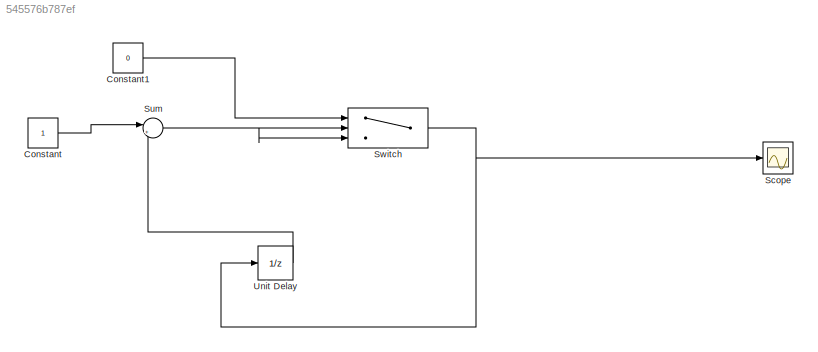
MODEL slx_545576b787ef
KIND model
CONFIG AbsTol = auto
CONFIG FixedStep = auto
CONFIG MaxStep = auto
CONFIG MinStep = auto
CONFIG RelTol = 1e-3
CONFIG SampleTimeConstraint = Unconstrained
CONFIG Solver = VariableStepAuto
CONFIG SolverMode = Auto
CONFIG SolverName = VariableStepAuto
CONFIG StartTime = 0.0
CONFIG StopTime = inf
BLOCK [Constant] Constant
BLOCK [Constant] Constant1
  Value = 0
BLOCK [Scope] Scope
  Ports = [1]
  ScopeSpecificationString = Simulink.scopes.TimeScopeBlockCfg('CurrentConfiguration', extmgr.ConfigurationSet(extmgr.Configuration('Core','General UI',true),extmgr.Configuration('Core','Source UI',true),extmgr.Configuration('Sources','WiredSimulink',true),extmgr.Configuration('Visuals','Time Domain',true,'SerializedDisplays',{struct('MinYLimReal','309.00000','MaxYLimReal','2309.00000','YLabelReal','','MinYLimMag','309.00000'...<+1392ch>
BLOCK [Sum] Sum
  IconShape = round
  InputSameDT = off
  Inputs = |++
  OutDataTypeStr = Inherit: Inherit via internal rule
  Ports = [2, 1]
  SaturateOnIntegerOverflow = off
BLOCK [Switch] Switch
  Criteria = u2 > Threshold
  InputSameDT = off
  SaturateOnIntegerOverflow = off
  Threshold = 2000
BLOCK [UnitDelay] Unit Delay
  InputProcessing = Elements as channels (sample based)
  SampleTime = 1000
LINE Constant1:1 -> Switch:1
LINE Constant:1 -> Sum:1
NET Sum:1 -> Switch:2, Switch:3
NET Switch:1 -> Scope:1, Unit Delay:1
LINE Unit Delay:1 -> Sum:2
note: NET lines group one-source signal fan-out (src -> all destinations, sorted); 1:1 wires keep LINE
